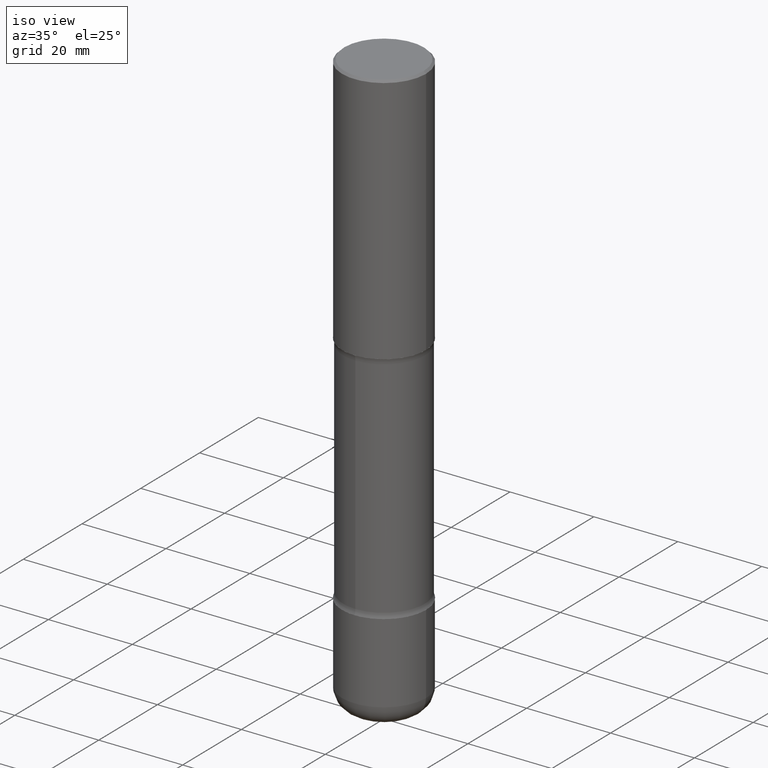
[diagram: clean part render]
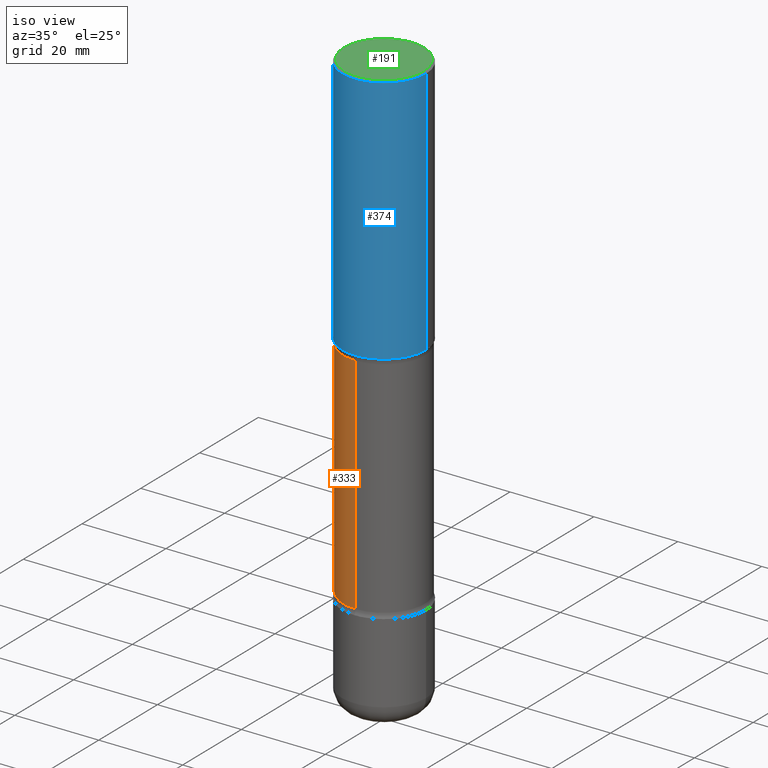
[diagram: same view with three faces highlighted in distinct colors, each labeled with its STEP entity id]
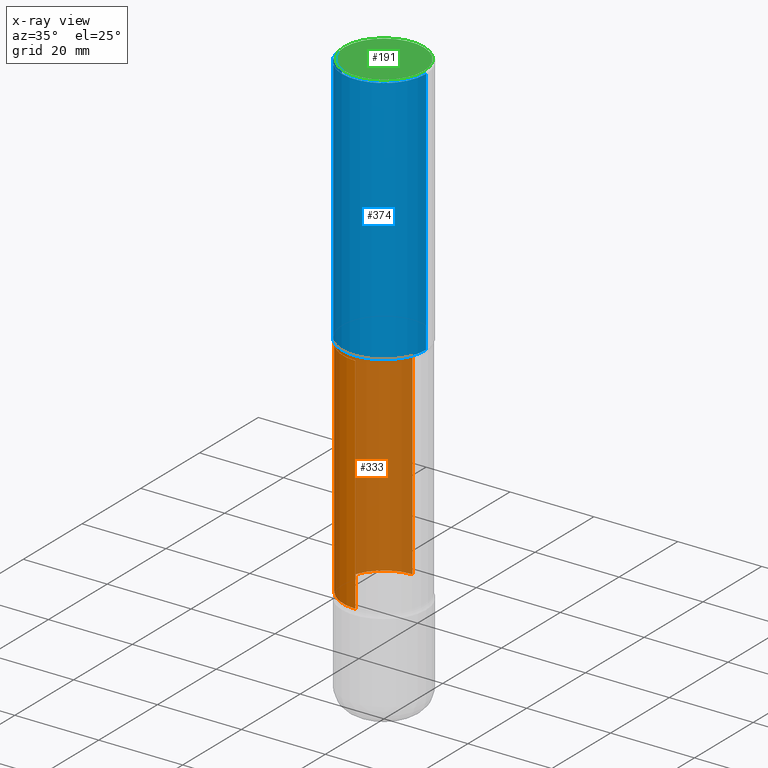
[diagram: x-ray of the same camera — body ghosted, the three highlighted faces saturated]
A machine part, iso view with three faces highlighted in distinct colors.
The next image is the same camera in x-ray (body ghosted, the three faces saturated) — at least one of them is partly hidden behind the body in this view.
Their STEP definitions:

[orange] entity #333 — the highlighted cylindrical surface (partial cylindrical patch) has radius 9.7409 mm, axis along (0, -0, -1).
#4 = AXIS2_PLACEMENT_3D ( 'NONE', #414, #497, #33 ) ;
#20 = DIRECTION ( 'NONE',  ( 2.551873980375737716E-29, -3.339103073195795043E-15, -1.000000000000000000 ) ) ;
#33 = DIRECTION ( 'NONE',  ( 6.982962677686265922E-15, 1.000000000000000000, -2.849385130288670661E-15 ) ) ;
#43 = CARTESIAN_POINT ( 'NONE',  ( -2.631000982145247058E-15, -0.3835000000000192699, -5.511799999999999145 ) ) ;
#64 = FACE_OUTER_BOUND ( 'NONE', #540, .T. ) ;
#77 = VECTOR ( 'NONE', #437, 39.37007874015748143 ) ;
#81 = DIRECTION ( 'NONE',  ( 6.982962677686265133E-15, 1.000000000000000000, -3.561731412860835763E-15 ) ) ;
#100 = CIRCLE ( 'NONE', #452, 0.3835000000000002851 ) ;
#121 = ORIENTED_EDGE ( 'NONE', *, *, #278, .T. ) ;
#122 = VECTOR ( 'NONE', #534, 39.37007874015748143 ) ;
#139 = EDGE_CURVE ( 'NONE', #258, #402, #397, .T. ) ;
#170 = LINE ( 'NONE', #229, #122 ) ;
#208 = VERTEX_POINT ( 'NONE', #447 ) ;
#215 = EDGE_CURVE ( 'NONE', #258, #208, #100, .T. ) ;
#217 = CARTESIAN_POINT ( 'NONE',  ( -2.665989521933906951E-15, -0.3835000000000157727, -4.517443352317407346 ) ) ;
#229 = CARTESIAN_POINT ( 'NONE',  ( 2.677966186892819583E-15, 0.3834999999999810227, -5.511800000000000921 ) ) ;
#231 = CYLINDRICAL_SURFACE ( 'NONE', #530, 0.3835000000000001741 ) ;
#258 = VERTEX_POINT ( 'NONE', #279 ) ;
#278 = EDGE_CURVE ( 'NONE', #208, #376, #170, .T. ) ;
#279 = CARTESIAN_POINT ( 'NONE',  ( -2.665989521933964538E-15, -0.3835000000000090559, -2.411656647682591803 ) ) ;
#305 = EDGE_CURVE ( 'NONE', #402, #376, #401, .T. ) ;
#324 = ORIENTED_EDGE ( 'NONE', *, *, #139, .F. ) ;
#333 = ADVANCED_FACE ( 'NONE', ( #64 ), #231, .T. ) ;
#339 = DIRECTION ( 'NONE',  ( 6.982962677686265133E-15, 1.000000000000000000, -2.849385130288669478E-15 ) ) ;
#376 = VERTEX_POINT ( 'NONE', #511 ) ;
#380 = CARTESIAN_POINT ( 'NONE',  ( 1.357947721502393649E-28, -1.910036462022546845E-14, -5.511800000000000033 ) ) ;
#387 = ORIENTED_EDGE ( 'NONE', *, *, #215, .T. ) ;
#397 = LINE ( 'NONE', #43, #77 ) ;
#401 = CIRCLE ( 'NONE', #4, 0.3835000000000000075 ) ;
#402 = VERTEX_POINT ( 'NONE', #217 ) ;
#413 = CARTESIAN_POINT ( 'NONE',  ( 5.668302058810330557E-29, -8.748666425154899227E-15, -2.411656647682593135 ) ) ;
#414 = CARTESIAN_POINT ( 'NONE',  ( 1.104200435858908498E-28, -1.578010528209585513E-14, -4.517443352317408234 ) ) ;
#429 = ORIENTED_EDGE ( 'NONE', *, *, #305, .F. ) ;
#437 = DIRECTION ( 'NONE',  ( 2.551873980375737716E-29, -3.339103073195795043E-15, -1.000000000000000000 ) ) ;
#447 = CARTESIAN_POINT ( 'NONE',  ( 2.677966186892741486E-15, 0.3834999999999915699, -2.411656647682594468 ) ) ;
#452 = AXIS2_PLACEMENT_3D ( 'NONE', #413, #20, #81 ) ;
#493 = DIRECTION ( 'NONE',  ( 2.551873980375737716E-29, -3.339103073195795043E-15, -1.000000000000000000 ) ) ;
#497 = DIRECTION ( 'NONE',  ( 2.551873980375737716E-29, -3.339103073195795043E-15, -1.000000000000000000 ) ) ;
#511 = CARTESIAN_POINT ( 'NONE',  ( 2.677966186892793550E-15, 0.3834999999999842424, -4.517443352317409122 ) ) ;
#530 = AXIS2_PLACEMENT_3D ( 'NONE', #380, #493, #339 ) ;
#534 = DIRECTION ( 'NONE',  ( 2.551873980375737716E-29, -3.339103073195795043E-15, -1.000000000000000000 ) ) ;
#540 = EDGE_LOOP ( 'NONE', ( #324, #387, #121, #429 ) ) ;

[blue] entity #374 — the highlighted cylindrical surface (partial cylindrical patch) has radius 10 mm, axis along (-0, 0, 1).
#34 = ORIENTED_EDGE ( 'NONE', *, *, #244, .T. ) ;
#35 = DIRECTION ( 'NONE',  ( -2.445468806185136597E-29, 3.491481338843145583E-15, 1.000000000000000000 ) ) ;
#42 = DIRECTION ( 'NONE',  ( -2.445468806185136597E-29, 3.491481338843145583E-15, 1.000000000000000000 ) ) ;
#65 = CIRCLE ( 'NONE', #557, 0.3937000000000000499 ) ;
#80 = ORIENTED_EDGE ( 'NONE', *, *, #226, .F. ) ;
#94 = VECTOR ( 'NONE', #450, 39.37007874015748143 ) ;
#103 = CARTESIAN_POINT ( 'NONE',  ( -0.3937000000000001054, 2.797406750687515181E-15, -1.936584745033357016E-29 ) ) ;
#105 = EDGE_CURVE ( 'NONE', #342, #381, #65, .T. ) ;
#110 = VERTEX_POINT ( 'NONE', #136 ) ;
#135 = CARTESIAN_POINT ( 'NONE',  ( 0.3937000000000000499, -2.770807688499515734E-15, -0.02000000000000008715 ) ) ;
#136 = CARTESIAN_POINT ( 'NONE',  ( -0.3937000000000002720, -1.361296672008554112E-15, -2.362200000000000077 ) ) ;
#152 = DIRECTION ( 'NONE',  ( -2.445468806185136597E-29, 3.491481338843145583E-15, 1.000000000000000000 ) ) ;
#155 = LINE ( 'NONE', #195, #94 ) ;
#184 = CARTESIAN_POINT ( 'NONE',  ( 0.3937000000000002164, -1.099676962482036442E-14, -2.362200000000000077 ) ) ;
#195 = CARTESIAN_POINT ( 'NONE',  ( 0.3937000000000001054, -2.749192406205084005E-15, 1.919750796630860452E-29 ) ) ;
#199 = DIRECTION ( 'NONE',  ( -2.445468806185136877E-29, 3.491481338843145188E-15, 1.000000000000000000 ) ) ;
#214 = DIRECTION ( 'NONE',  ( 1.000000000000000000, -6.982962677686265922E-15, 0.000000000000000000 ) ) ;
#221 = CYLINDRICAL_SURFACE ( 'NONE', #412, 0.3937000000000001054 ) ;
#226 = EDGE_CURVE ( 'NONE', #110, #342, #236, .T. ) ;
#236 = LINE ( 'NONE', #103, #344 ) ;
#243 = ORIENTED_EDGE ( 'NONE', *, *, #286, .T. ) ;
#244 = EDGE_CURVE ( 'NONE', #462, #381, #155, .T. ) ;
#286 = EDGE_CURVE ( 'NONE', #110, #462, #494, .T. ) ;
#307 = DIRECTION ( 'NONE',  ( 1.000000000000000000, -6.982962677686266711E-15, 4.876176775795935793E-29 ) ) ;
#309 = CARTESIAN_POINT ( 'NONE',  ( 0.000000000000000000, 0.000000000000000000, 0.000000000000000000 ) ) ;
#327 = DIRECTION ( 'NONE',  ( 1.000000000000000000, -6.982962677686266711E-15, 0.000000000000000000 ) ) ;
#342 = VERTEX_POINT ( 'NONE', #428 ) ;
#344 = VECTOR ( 'NONE', #199, 39.37007874015748143 ) ;
#374 = ADVANCED_FACE ( 'NONE', ( #514 ), #221, .T. ) ;
#381 = VERTEX_POINT ( 'NONE', #135 ) ;
#407 = CARTESIAN_POINT ( 'NONE',  ( 5.776686413970530874E-29, -8.247577218615279626E-15, -2.362200000000000077 ) ) ;
#412 = AXIS2_PLACEMENT_3D ( 'NONE', #309, #42, #307 ) ;
#427 = CARTESIAN_POINT ( 'NONE',  ( 4.890937612370294178E-31, -6.982962677686321191E-17, -0.02000000000000008715 ) ) ;
#428 = CARTESIAN_POINT ( 'NONE',  ( -0.3937000000000000499, 2.679362779428219918E-15, -0.02000000000000008715 ) ) ;
#438 = AXIS2_PLACEMENT_3D ( 'NONE', #407, #152, #327 ) ;
#446 = EDGE_LOOP ( 'NONE', ( #80, #243, #34, #527 ) ) ;
#450 = DIRECTION ( 'NONE',  ( -2.445468806185136877E-29, 3.491481338843145188E-15, 1.000000000000000000 ) ) ;
#462 = VERTEX_POINT ( 'NONE', #184 ) ;
#494 = CIRCLE ( 'NONE', #438, 0.3937000000000002164 ) ;
#514 = FACE_OUTER_BOUND ( 'NONE', #446, .T. ) ;
#527 = ORIENTED_EDGE ( 'NONE', *, *, #105, .F. ) ;
#557 = AXIS2_PLACEMENT_3D ( 'NONE', #427, #35, #214 ) ;

[green] entity #191 — the highlighted planar face has unit normal (0, -0, -1).
#2 = CIRCLE ( 'NONE', #371, 0.3736999999999999766 ) ;
#12 = CARTESIAN_POINT ( 'NONE',  ( -2.087702828670439639E-46, 2.980686340760894400E-32, 8.537024980200822558E-18 ) ) ;
#23 = DIRECTION ( 'NONE',  ( -1.000000000000000000, 6.982962677686265922E-15, -4.876176775795935793E-29 ) ) ;
#31 = ORIENTED_EDGE ( 'NONE', *, *, #433, .T. ) ;
#36 = DIRECTION ( 'NONE',  ( 2.438088387897960049E-29, -3.491481338843145188E-15, -1.000000000000000000 ) ) ;
#40 = EDGE_CURVE ( 'NONE', #193, #63, #2, .T. ) ;
#53 = AXIS2_PLACEMENT_3D ( 'NONE', #350, #467, #522 ) ;
#62 = CARTESIAN_POINT ( 'NONE',  ( -0.3736999999999999766, 2.644447966039789058E-15, 8.537024980182450727E-18 ) ) ;
#63 = VERTEX_POINT ( 'NONE', #62 ) ;
#123 = EDGE_LOOP ( 'NONE', ( #31, #269 ) ) ;
#138 = AXIS2_PLACEMENT_3D ( 'NONE', #502, #36, #23 ) ;
#151 = DIRECTION ( 'NONE',  ( 1.000000000000000000, -6.982962677686266711E-15, 4.876212485538975679E-29 ) ) ;
#191 = ADVANCED_FACE ( 'NONE', ( #341 ), #519, .F. ) ;
#193 = VERTEX_POINT ( 'NONE', #302 ) ;
#269 = ORIENTED_EDGE ( 'NONE', *, *, #40, .T. ) ;
#302 = CARTESIAN_POINT ( 'NONE',  ( 0.3736999999999999766, -2.667287895133368359E-15, 8.537024980219274507E-18 ) ) ;
#341 = FACE_OUTER_BOUND ( 'NONE', #123, .T. ) ;
#350 = CARTESIAN_POINT ( 'NONE',  ( -2.087702828670439639E-46, 2.980686340760894400E-32, 8.537024980200822558E-18 ) ) ;
#371 = AXIS2_PLACEMENT_3D ( 'NONE', #12, #443, #151 ) ;
#433 = EDGE_CURVE ( 'NONE', #63, #193, #528, .T. ) ;
#443 = DIRECTION ( 'NONE',  ( -2.445468806185136597E-29, 3.491481338843145583E-15, 1.000000000000000000 ) ) ;
#467 = DIRECTION ( 'NONE',  ( -2.445468806185136597E-29, 3.491481338843145583E-15, 1.000000000000000000 ) ) ;
#502 = CARTESIAN_POINT ( 'NONE',  ( 2.609533152651357409E-15, 0.3736999999999999766, -1.300498063835583011E-15 ) ) ;
#519 = PLANE ( 'NONE',  #138 ) ;
#522 = DIRECTION ( 'NONE',  ( 1.000000000000000000, -6.982962677686266711E-15, 4.876212485538975679E-29 ) ) ;
#528 = CIRCLE ( 'NONE', #53, 0.3736999999999999766 ) ;